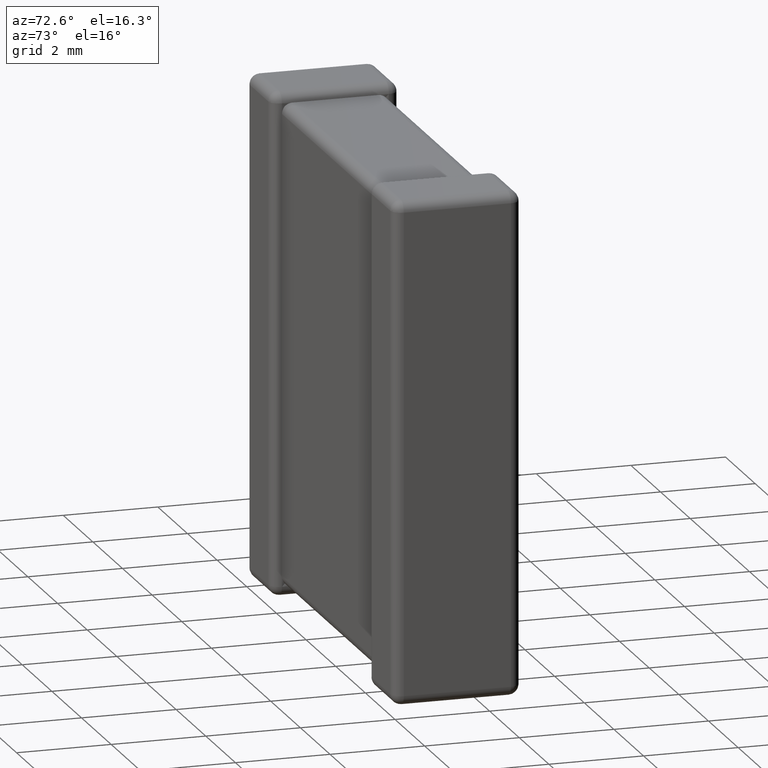
[diagram: clean part render]
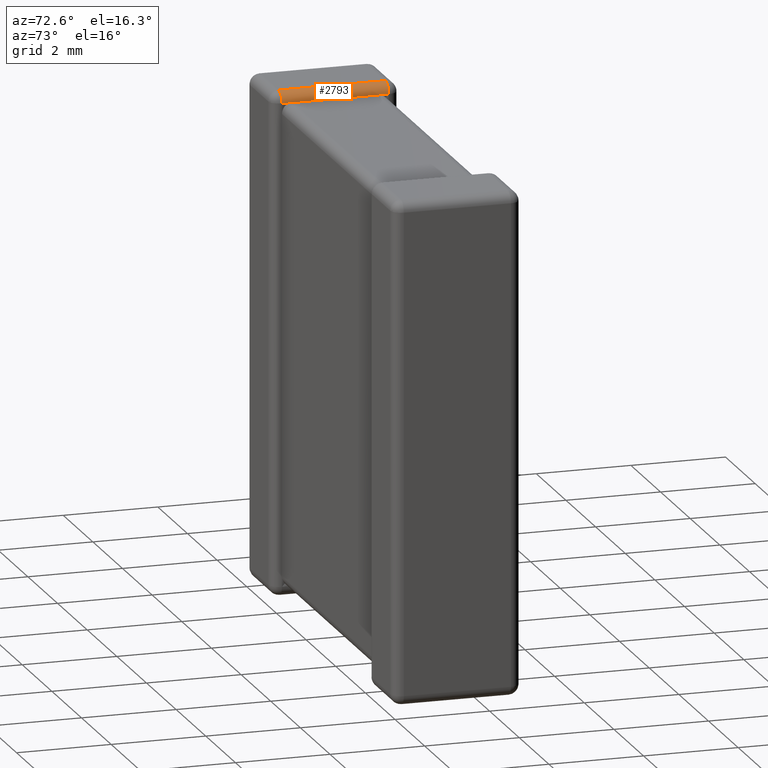
[diagram: same view with one face highlighted and labeled with its STEP entity id]
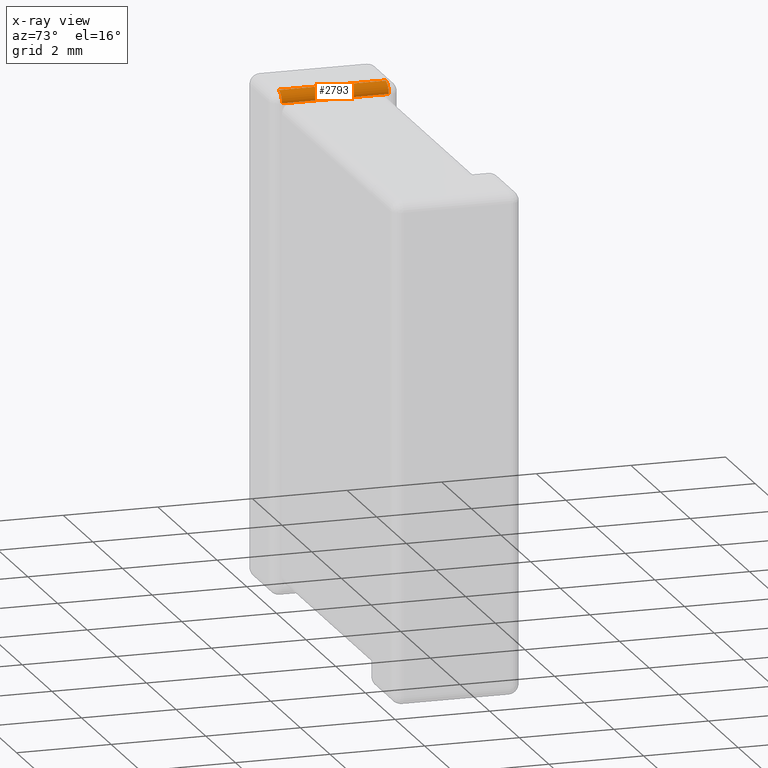
[diagram: x-ray of the same camera — body ghosted, the highlighted face saturated]
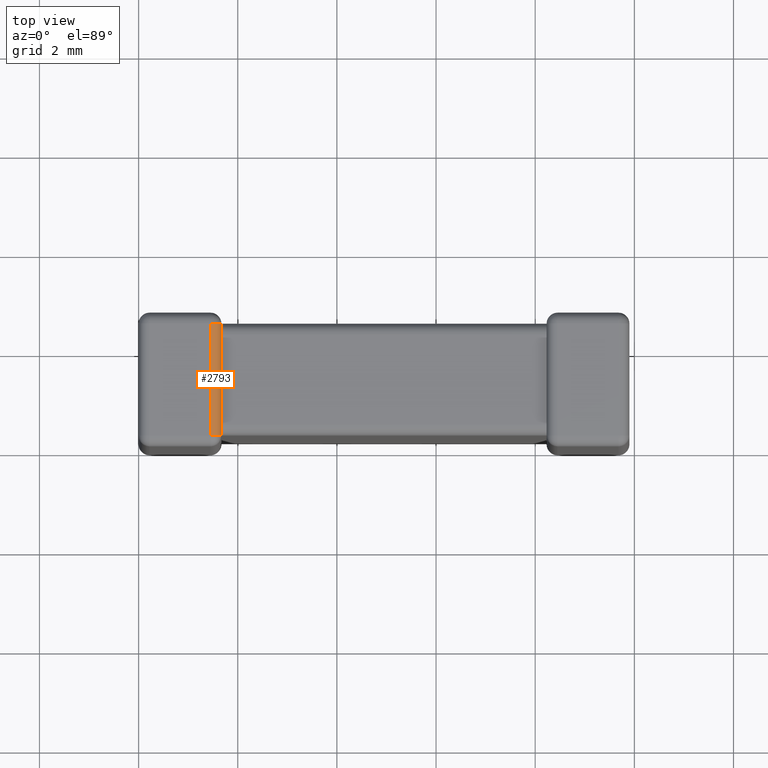
[diagram: same view with one face highlighted and labeled with its STEP entity id]
A machine part, auxiliary view. The second image highlights one B-rep face of the part: STEP entity #2793.
The next image is the same camera in x-ray: the body ghosted, the highlighted face saturated — about 0% of this face is hidden behind the body in this view.
A second angle (top view) of the same face is appended — the face is thin or edge-on in the first view.
In plain terms, the highlighted cylindrical surface (edge-blend (fillet) strip) has radius 0.2205 mm, axis along (0, -1, 0).
Its self-contained STEP definition (entity closure, byte-faithful):
#230 = EDGE_CURVE ( 'NONE', #3347, #3637, #4371, .T. ) ;
#255 = VERTEX_POINT ( 'NONE', #2910 ) ;
#308 = ORIENTED_EDGE ( 'NONE', *, *, #1820, .F. ) ;
#535 = DIRECTION ( 'NONE',  ( -1.000000000000000000, -1.966985073449755141E-15, 1.721111939268535551E-15 ) ) ;
#638 = VECTOR ( 'NONE', #2682, 1000.000000000000000 ) ;
#753 = DIRECTION ( 'NONE',  ( 1.000000000000000000, 9.834925367248775703E-16, 0.000000000000000000 ) ) ;
#768 = EDGE_CURVE ( 'NONE', #255, #2601, #2286, .T. ) ;
#799 = EDGE_CURVE ( 'NONE', #3347, #4167, #2367, .T. ) ;
#865 = LINE ( 'NONE', #1939, #638 ) ;
#979 = CYLINDRICAL_SURFACE ( 'NONE', #1490, 0.2204799999999998983 ) ;
#1046 = CARTESIAN_POINT ( 'NONE',  ( 1.449519999999999920, 2.479520000000000390, 0.000000000000000000 ) ) ;
#1322 = ORIENTED_EDGE ( 'NONE', *, *, #768, .T. ) ;
#1336 = DIRECTION ( 'NONE',  ( 1.000000000000000000, 1.966985073449755141E-15, 0.000000000000000000 ) ) ;
#1338 = CARTESIAN_POINT ( 'NONE',  ( 1.669999999999999707, 2.259040000000000159, -0.2204800000000003424 ) ) ;
#1388 = VECTOR ( 'NONE', #1999, 1000.000000000000000 ) ;
#1407 = CARTESIAN_POINT ( 'NONE',  ( 1.449520000000002140, 0.2204799999999999538, -0.2204800000000003424 ) ) ;
#1490 = AXIS2_PLACEMENT_3D ( 'NONE', #2425, #3099, #1336 ) ;
#1820 = EDGE_CURVE ( 'NONE', #2148, #2601, #2415, .T. ) ;
#1939 = CARTESIAN_POINT ( 'NONE',  ( 1.669999999999999707, 2.700000000000000178, -0.2204800000000003424 ) ) ;
#1943 = CARTESIAN_POINT ( 'NONE',  ( 1.669999999999999707, 0.000000000000000000, -0.2204800000000003424 ) ) ;
#1999 = DIRECTION ( 'NONE',  ( 9.834925367248775703E-16, -1.000000000000000000, 0.000000000000000000 ) ) ;
#2074 = AXIS2_PLACEMENT_3D ( 'NONE', #4037, #2293, #535 ) ;
#2117 = VECTOR ( 'NONE', #3016, 1000.000000000000000 ) ;
#2148 = VERTEX_POINT ( 'NONE', #3223 ) ;
#2199 = ORIENTED_EDGE ( 'NONE', *, *, #3576, .F. ) ;
#2286 = CIRCLE ( 'NONE', #2074, 0.2204799999999998983 ) ;
#2293 = DIRECTION ( 'NONE',  ( 1.966985073449755141E-15, -1.000000000000000000, -0.000000000000000000 ) ) ;
#2315 = ORIENTED_EDGE ( 'NONE', *, *, #230, .T. ) ;
#2359 = CARTESIAN_POINT ( 'NONE',  ( 1.669999999999999707, 0.4409599999999990194, -0.2204800000000003424 ) ) ;
#2367 = LINE ( 'NONE', #2765, #1388 ) ;
#2415 = LINE ( 'NONE', #3819, #2522 ) ;
#2425 = CARTESIAN_POINT ( 'NONE',  ( 1.449519999999999698, 2.699999999999999734, -0.2204800000000003424 ) ) ;
#2522 = VECTOR ( 'NONE', #3385, 1000.000000000000000 ) ;
#2601 = VERTEX_POINT ( 'NONE', #1046 ) ;
#2682 = DIRECTION ( 'NONE',  ( 9.834925367248775703E-16, -1.000000000000000000, 0.000000000000000000 ) ) ;
#2765 = CARTESIAN_POINT ( 'NONE',  ( 1.669999999999999707, 2.700000000000000178, -0.2204800000000003424 ) ) ;
#2793 = ADVANCED_FACE ( 'NONE', ( #3441 ), #979, .T. ) ;
#2910 = CARTESIAN_POINT ( 'NONE',  ( 1.669999999999999707, 2.479520000000000390, -0.2204800000000003424 ) ) ;
#3016 = DIRECTION ( 'NONE',  ( -0.000000000000000000, 1.000000000000000000, -0.000000000000000000 ) ) ;
#3099 = DIRECTION ( 'NONE',  ( 9.834925367248775703E-16, -1.000000000000000000, 0.000000000000000000 ) ) ;
#3172 = EDGE_LOOP ( 'NONE', ( #2199, #1322, #308, #4264, #3939, #2315 ) ) ;
#3223 = CARTESIAN_POINT ( 'NONE',  ( 1.449520000000002140, 0.2204799999999999538, 0.000000000000000000 ) ) ;
#3339 = CARTESIAN_POINT ( 'NONE',  ( 1.669999999999999929, 0.2204799999999990379, -0.2204800000000003424 ) ) ;
#3347 = VERTEX_POINT ( 'NONE', #2359 ) ;
#3385 = DIRECTION ( 'NONE',  ( -9.834925367248775703E-16, 1.000000000000000000, -0.000000000000000000 ) ) ;
#3441 = FACE_OUTER_BOUND ( 'NONE', #3172, .T. ) ;
#3576 = EDGE_CURVE ( 'NONE', #255, #3637, #865, .T. ) ;
#3637 = VERTEX_POINT ( 'NONE', #1338 ) ;
#3819 = CARTESIAN_POINT ( 'NONE',  ( 1.449520000000002806, -8.310984011742842305E-15, 0.000000000000000000 ) ) ;
#3939 = ORIENTED_EDGE ( 'NONE', *, *, #799, .F. ) ;
#4037 = CARTESIAN_POINT ( 'NONE',  ( 1.449519999999999920, 2.479520000000000390, -0.2204799999999999816 ) ) ;
#4067 = EDGE_CURVE ( 'NONE', #4167, #2148, #4506, .T. ) ;
#4167 = VERTEX_POINT ( 'NONE', #3339 ) ;
#4264 = ORIENTED_EDGE ( 'NONE', *, *, #4067, .F. ) ;
#4346 = AXIS2_PLACEMENT_3D ( 'NONE', #1407, #4580, #753 ) ;
#4371 = LINE ( 'NONE', #1943, #2117 ) ;
#4506 = CIRCLE ( 'NONE', #4346, 0.2204799999999998983 ) ;
#4580 = DIRECTION ( 'NONE',  ( 9.834925367248775703E-16, -1.000000000000000000, 0.000000000000000000 ) ) ;